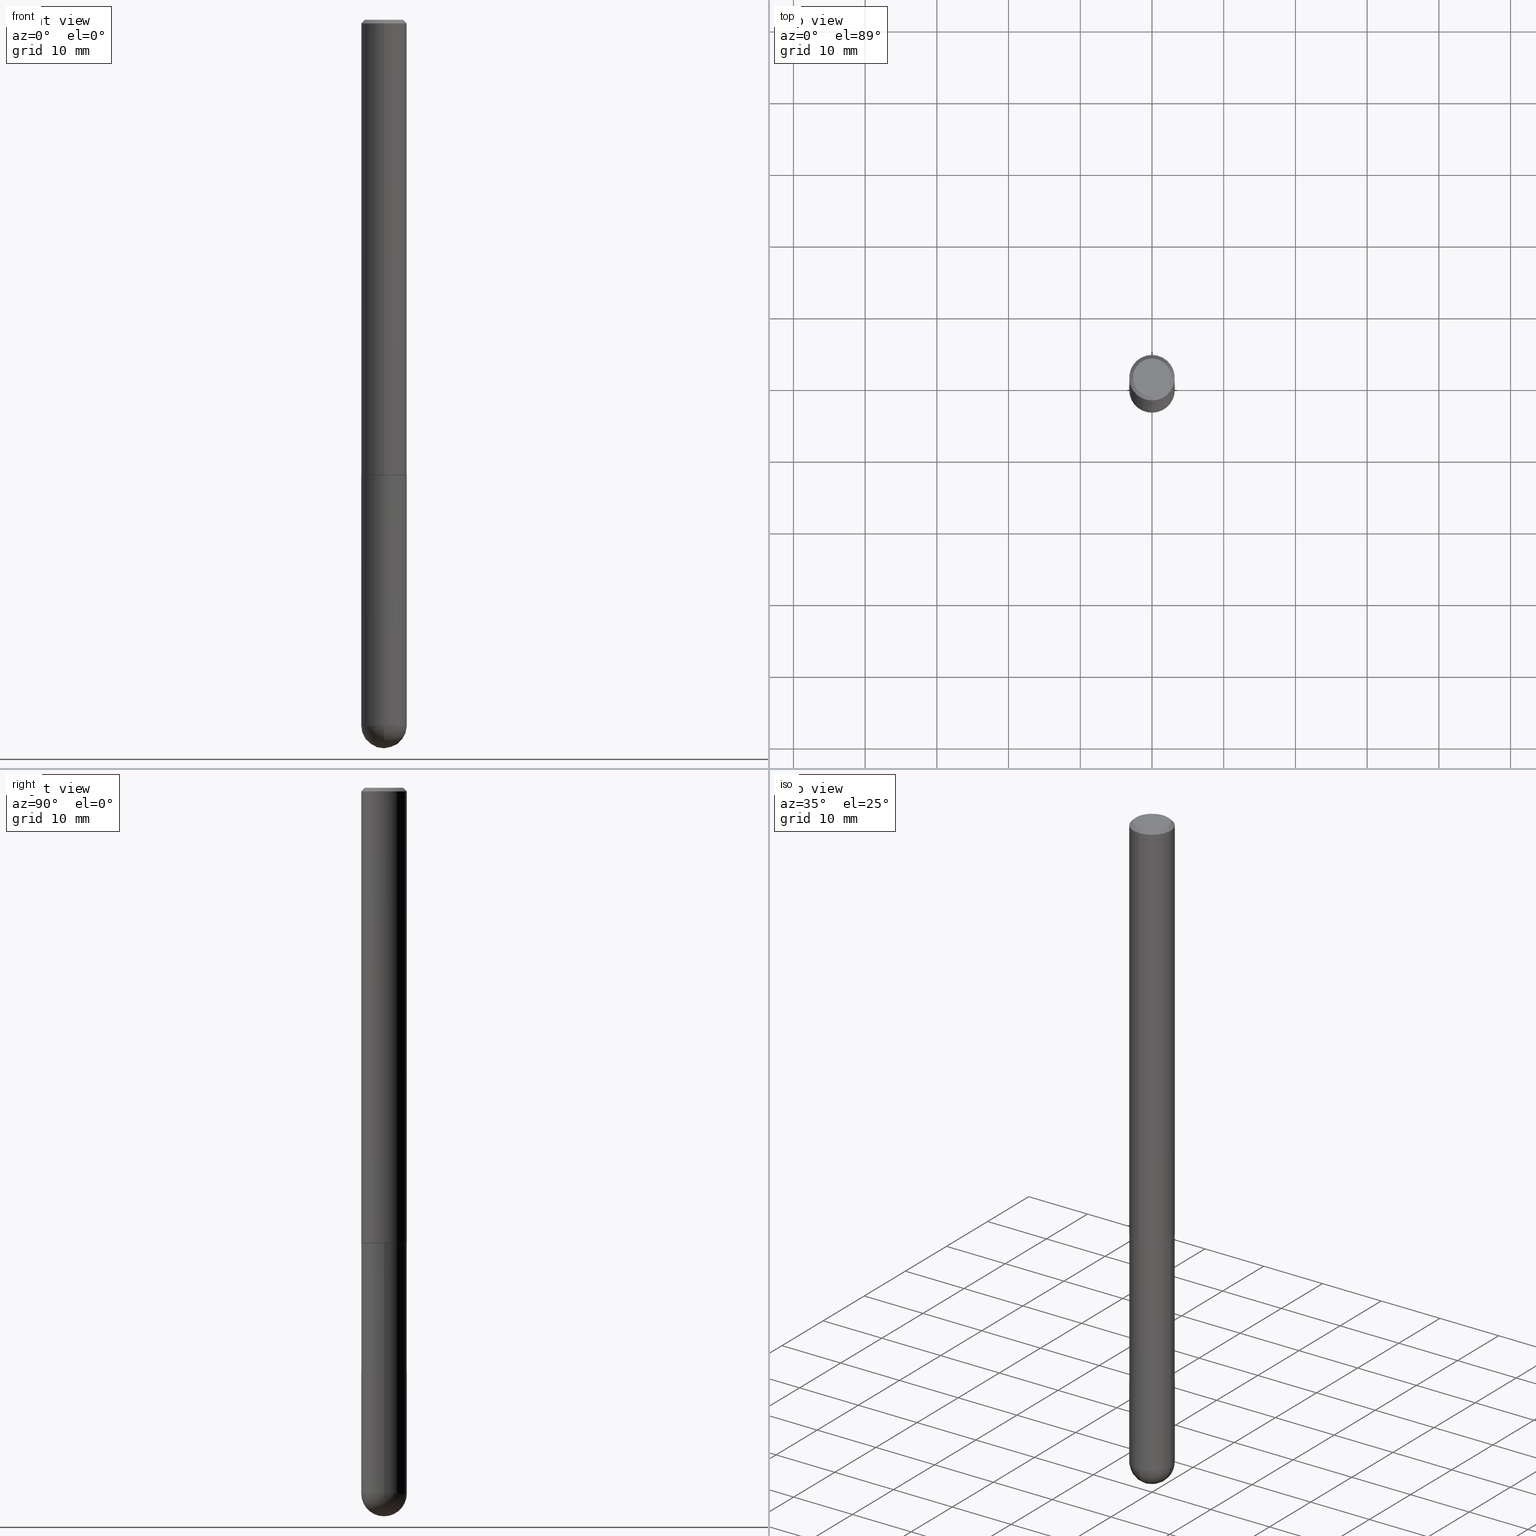
[diagram: canonical four-view strip — front | top / right | iso, engineering-drawing reading convention]
A machine part, canonical four-view strip (front | top / right | iso — engineering-drawing reading convention). The complete STEP part file that produces these views, byte-faithful:
ISO-10303-21;
HEADER;
FILE_DESCRIPTION (( 'STEP AP203' ),
    '1' );
FILE_NAME ('31930.STEP',
    '2024-02-21T17:17:25',
    ( '' ),
    ( '' ),
    'SwSTEP 2.0',
    'SolidWorks 2023',
    '' );
FILE_SCHEMA (( 'CONFIG_CONTROL_DESIGN' ));
ENDSEC;

DATA;
#1 = LINE ( 'NONE', #250, #222 ) ;
#2 = AXIS2_PLACEMENT_3D ( 'NONE', #173, #110, #388 ) ;
#3 = AXIS2_PLACEMENT_3D ( 'NONE', #58, #22, #53 ) ;
#4 = DIRECTION ( 'NONE',  ( -2.446028636923791301E-29, 3.490679629361805041E-15, 1.000000000000000000 ) ) ;
#5 = ADVANCED_FACE ( 'NONE', ( #379 ), #342, .T. ) ;
#6 = DIRECTION ( 'NONE',  ( -6.982962677686265922E-15, -1.000000000000000000, 3.490679629361805041E-15 ) ) ;
#7 = DIRECTION ( 'NONE',  ( -6.982962677686265922E-15, -1.000000000000000000, 3.490679629361805041E-15 ) ) ;
#8 = AXIS2_PLACEMENT_3D ( 'NONE', #320, #41, #112 ) ;
#9 = FACE_OUTER_BOUND ( 'NONE', #183, .T. ) ;
#10 = CARTESIAN_POINT ( 'NONE',  ( 8.728703347108443769E-16, 0.1249999999999912709, -2.500000000000000444 ) ) ;
#11 = DIRECTION ( 'NONE',  ( 6.982962677686265922E-15, 1.000000000000000000, -3.483106191921935554E-15 ) ) ;
#12 = APPLICATION_CONTEXT ( 'configuration controlled 3d designs of mechanical parts and assemblies' ) ;
#13 = AXIS2_PLACEMENT_3D ( 'NONE', #129, #134, #312 ) ;
#14 = AXIS2_PLACEMENT_3D ( 'NONE', #206, #261, #138 ) ;
#15 = CARTESIAN_POINT ( 'NONE',  ( 6.113672015462842613E-29, -8.728703347107864943E-15, -2.500000000000000000 ) ) ;
#16 = ADVANCED_FACE ( 'NONE', ( #347 ), #39, .T. ) ;
#17 = LINE ( 'NONE', #332, #131 ) ;
#18 = ORIENTED_EDGE ( 'NONE', *, *, #71, .T. ) ;
#19 = PRODUCT ( '31930', '31930', '', ( #121 ) ) ;
#20 = EDGE_LOOP ( 'NONE', ( #57, #298, #402, #272 ) ) ;
#21 = CIRCLE ( 'NONE', #126, 0.1250000000000000000 ) ;
#22 = DIRECTION ( 'NONE',  ( -2.445468806185136597E-29, 3.491481338843145583E-15, 1.000000000000000000 ) ) ;
#23 = ORIENTED_EDGE ( 'NONE', *, *, #200, .F. ) ;
#24 = DIRECTION ( 'NONE',  ( 1.000000000000000000, -6.982962677686262766E-15, 0.000000000000000000 ) ) ;
#25 = VERTEX_POINT ( 'NONE', #255 ) ;
#26 = ORIENTED_EDGE ( 'NONE', *, *, #145, .F. ) ;
#27 = CIRCLE ( 'NONE', #3, 0.1250000000000000000 ) ;
#28 = COORDINATED_UNIVERSAL_TIME_OFFSET ( 5, 0, .BEHIND. ) ;
#29 = DIRECTION ( 'NONE',  ( -2.445468806185136877E-29, 3.491481338843145188E-15, 1.000000000000000000 ) ) ;
#30 = EDGE_CURVE ( 'NONE', #330, #246, #164, .T. ) ;
#31 = ADVANCED_FACE ( 'NONE', ( #184 ), #99, .F. ) ;
#32 = COORDINATED_UNIVERSAL_TIME_OFFSET ( 5, 0, .BEHIND. ) ;
#33 = ORIENTED_EDGE ( 'NONE', *, *, #102, .F. ) ;
#34 = DATE_AND_TIME ( #64, #174 ) ;
#35 = FACE_OUTER_BOUND ( 'NONE', #333, .T. ) ;
#36 = CALENDAR_DATE ( 2024, 21, 2 ) ;
#37 = LINE ( 'NONE', #65, #42 ) ;
#38 = AXIS2_PLACEMENT_3D ( 'NONE', #199, #358, #353 ) ;
#39 = SPHERICAL_SURFACE ( 'NONE', #154, 0.1250000000000001943 ) ;
#40 = DIRECTION ( 'NONE',  ( -6.982962677686265922E-15, -1.000000000000000000, 4.406206441393973340E-15 ) ) ;
#41 = DIRECTION ( 'NONE',  ( 2.446028636923791301E-29, -3.490679629361805041E-15, -1.000000000000000000 ) ) ;
#42 = VECTOR ( 'NONE', #67, 39.37007874015748143 ) ;
#43 = CARTESIAN_POINT ( 'NONE',  ( -0.1250000000000000000, -1.024091834786240415E-14, -3.875000000000000000 ) ) ;
#44 = CARTESIAN_POINT ( 'NONE',  ( 0.1250000000000000000, -1.200196710227331272E-14, -3.875000000000000000 ) ) ;
#45 = CC_DESIGN_DATE_AND_TIME_ASSIGNMENT ( #159, #225, ( #345 ) ) ;
#46 = DIRECTION ( 'NONE',  ( -6.982962677686266711E-15, -1.000000000000000000, 3.490679629361805435E-15 ) ) ;
#47 = CIRCLE ( 'NONE', #208, 0.1250000000000000000 ) ;
#48 = CC_DESIGN_SECURITY_CLASSIFICATION ( #322, ( #407 ) ) ;
#49 = DIRECTION ( 'NONE',  ( 6.982962677686265922E-15, 1.000000000000000000, -3.490679629361805041E-15 ) ) ;
#50 = EDGE_LOOP ( 'NONE', ( #122, #211, #401, #180, #26 ) ) ;
#51 = DIRECTION ( 'NONE',  ( -2.445468806185136877E-29, 3.491481338843145188E-15, 1.000000000000000000 ) ) ;
#52 = ORIENTED_EDGE ( 'NONE', *, *, #152, .F. ) ;
#53 = DIRECTION ( 'NONE',  ( 1.000000000000000000, -6.982962677686262766E-15, 0.000000000000000000 ) ) ;
#54 = VERTEX_POINT ( 'NONE', #104 ) ;
#55 = AXIS2_PLACEMENT_3D ( 'NONE', #291, #171, #292 ) ;
#56 = APPROVAL_PERSON_ORGANIZATION ( #116, #193, #227 ) ;
#57 = ORIENTED_EDGE ( 'NONE', *, *, #71, .F. ) ;
#58 = CARTESIAN_POINT ( 'NONE',  ( 9.476191623967404313E-29, -1.352949018801718908E-14, -3.875000000000000000 ) ) ;
#59 = ORIENTED_EDGE ( 'NONE', *, *, #360, .T. ) ;
#60 = CC_DESIGN_PERSON_AND_ORGANIZATION_ASSIGNMENT ( #340, #248, ( #407 ) ) ;
#61 = CALENDAR_DATE ( 2024, 21, 2 ) ;
#62 = LINE ( 'NONE', #309, #85 ) ;
#63 = CONICAL_SURFACE ( 'NONE', #8, 0.1250000000000000000, 0.7853981633974471688 ) ;
#64 = CALENDAR_DATE ( 2024, 21, 2 ) ;
#65 = CARTESIAN_POINT ( 'NONE',  ( -8.658873720330357934E-16, -0.1240000000000087144, -2.499999999999999556 ) ) ;
#66 = PERSON ( 'UNSPECIFIED', 'UNSPECIFIED', 'UNSPECIFIED', ('UNSPECIFIED'), ('UNSPECIFIED'), ('UNSPECIFIED') ) ;
#67 = DIRECTION ( 'NONE',  ( -4.937700262165812586E-15, -0.7071067811867262076, 0.7071067811863689379 ) ) ;
#68 = PERSON_AND_ORGANIZATION ( #66, #100 ) ;
#69 = CARTESIAN_POINT ( 'NONE',  ( 9.476191623967404313E-29, -1.352949018801718908E-14, -3.875000000000000000 ) ) ;
#70 = CALENDAR_DATE ( 2024, 21, 2 ) ;
#71 = EDGE_CURVE ( 'NONE', #25, #209, #185, .T. ) ;
#72 = DIRECTION ( 'NONE',  ( -2.446028636923791301E-29, 3.490679629361805041E-15, 1.000000000000000000 ) ) ;
#73 = EDGE_CURVE ( 'NONE', #270, #252, #37, .T. ) ;
#74 = AXIS2_PLACEMENT_3D ( 'NONE', #107, #286, #160 ) ;
#75 = CYLINDRICAL_SURFACE ( 'NONE', #195, 0.1250000000000001388 ) ;
#76 = EDGE_CURVE ( 'NONE', #54, #364, #256, .T. ) ;
#77 = CARTESIAN_POINT ( 'NONE',  ( 8.728703347108770161E-16, 0.1249999999999863443, -3.875000000000000444 ) ) ;
#78 = DIRECTION ( 'NONE',  ( 2.438088387897960049E-29, -3.491481338843145188E-15, -1.000000000000000000 ) ) ;
#79 = AXIS2_PLACEMENT_3D ( 'NONE', #207, #363, #210 ) ;
#80 = CARTESIAN_POINT ( 'NONE',  ( -8.881784197000325412E-16, -0.1250000000000138500, -3.874999999999999556 ) ) ;
#81 = UNCERTAINTY_MEASURE_WITH_UNIT (LENGTH_MEASURE( 1.000000000000000082E-05 ), #143, 'distance_accuracy_value', 'NONE');
#82 = SPHERICAL_SURFACE ( 'NONE', #79, 0.1250000000000001943 ) ;
#83 = APPROVAL_STATUS ( 'not_yet_approved' ) ;
#84 = EDGE_CURVE ( 'NONE', #306, #153, #343, .T. ) ;
#85 = VECTOR ( 'NONE', #29, 39.37007874015748143 ) ;
#86 = FACE_OUTER_BOUND ( 'NONE', #128, .T. ) ;
#87 = EDGE_LOOP ( 'NONE', ( #144, #158, #274, #176, #399 ) ) ;
#88 = ADVANCED_FACE ( 'NONE', ( #35 ), #390, .T. ) ;
#89 = DIRECTION ( 'NONE',  ( -7.105427357601000281E-15, -1.000000000000000000, 0.000000000000000000 ) ) ;
#90 = CC_DESIGN_DATE_AND_TIME_ASSIGNMENT ( #376, #187, ( #322 ) ) ;
#91 = ORIENTED_EDGE ( 'NONE', *, *, #172, .T. ) ;
#92 = FACE_OUTER_BOUND ( 'NONE', #373, .T. ) ;
#93 = EDGE_LOOP ( 'NONE', ( #242, #130, #335, #218 ) ) ;
#94 = CIRCLE ( 'NONE', #303, 0.1250000000000000000 ) ;
#95 = DIRECTION ( 'NONE',  ( -1.000000000000000000, 7.105427357601001070E-15, -4.926315508542082329E-29 ) ) ;
#96 = ORIENTED_EDGE ( 'NONE', *, *, #152, .T. ) ;
#97 = EDGE_CURVE ( 'NONE', #148, #364, #186, .T. ) ;
#98 = CARTESIAN_POINT ( 'NONE',  ( 6.113672015462842613E-29, -8.728703347107864943E-15, -2.500000000000000000 ) ) ;
#99 = PLANE ( 'NONE',  #166 ) ;
#100 = ORGANIZATION ( 'UNSPECIFIED', 'UNSPECIFIED', '' ) ;
#101 = DIRECTION ( 'NONE',  ( 6.982962677686265922E-15, 1.000000000000000000, -4.370956789862814839E-15 ) ) ;
#102 = EDGE_CURVE ( 'NONE', #252, #364, #1, .T. ) ;
#103 = PERSON_AND_ORGANIZATION_ROLE ( 'creator' ) ;
#104 = CARTESIAN_POINT ( 'NONE',  ( -7.889572697437270014E-16, -0.1050000000000003431, 4.203023233981880134E-17 ) ) ;
#105 = CC_DESIGN_PERSON_AND_ORGANIZATION_ASSIGNMENT ( #68, #308, ( #322 ) ) ;
#106 = APPROVAL_STATUS ( 'not_yet_approved' ) ;
#107 = CARTESIAN_POINT ( 'NONE',  ( 4.892057273847589328E-31, -6.981359258723618414E-17, -0.02000000000000002470 ) ) ;
#108 = EDGE_CURVE ( 'NONE', #213, #54, #369, .T. ) ;
#109 = AXIS2_PLACEMENT_3D ( 'NONE', #344, #228, #133 ) ;
#110 = DIRECTION ( 'NONE',  ( -2.446028636923791301E-29, 3.490679629361805041E-15, 1.000000000000000000 ) ) ;
#111 = FACE_OUTER_BOUND ( 'NONE', #276, .T. ) ;
#112 = DIRECTION ( 'NONE',  ( 6.982962677686265922E-15, 1.000000000000000000, -3.483106191921935554E-15 ) ) ;
#113 = FACE_OUTER_BOUND ( 'NONE', #50, .T. ) ;
#114 = CIRCLE ( 'NONE', #247, 0.1239999999999999991 ) ;
#115 = DIMENSIONAL_EXPONENTS ( 1.000000000000000000, 0.000000000000000000, 0.000000000000000000, 0.000000000000000000, 0.000000000000000000, 0.000000000000000000, 0.000000000000000000 ) ;
#116 = PERSON_AND_ORGANIZATION ( #66, #100 ) ;
#117 = DIRECTION ( 'NONE',  ( -6.982962677686266711E-15, -1.000000000000000000, 3.490679629361805435E-15 ) ) ;
#118 = ORIENTED_EDGE ( 'NONE', *, *, #200, .T. ) ;
#119 = DIRECTION ( 'NONE',  ( 1.000000000000000000, 0.000000000000000000, 0.000000000000000000 ) ) ;
#120 = ORIENTED_EDGE ( 'NONE', *, *, #257, .T. ) ;
#121 = MECHANICAL_CONTEXT ( 'NONE', #12, 'mechanical' ) ;
#122 = ORIENTED_EDGE ( 'NONE', *, *, #367, .F. ) ;
#123 = PERSON_AND_ORGANIZATION ( #66, #100 ) ;
#124 = ORIENTED_EDGE ( 'NONE', *, *, #97, .T. ) ;
#125 = CC_DESIGN_PERSON_AND_ORGANIZATION_ASSIGNMENT ( #251, #280, ( #407 ) ) ;
#126 = AXIS2_PLACEMENT_3D ( 'NONE', #15, #327, #142 ) ;
#127 =( GEOMETRIC_REPRESENTATION_CONTEXT ( 3 ) GLOBAL_UNCERTAINTY_ASSIGNED_CONTEXT ( ( #81 ) ) GLOBAL_UNIT_ASSIGNED_CONTEXT ( ( #143, #336, #397 ) ) REPRESENTATION_CONTEXT ( 'NONE', 'WORKASPACE' ) );
#128 = EDGE_LOOP ( 'NONE', ( #240, #96 ) ) ;
#129 = CARTESIAN_POINT ( 'NONE',  ( 0.000000000000000000, 0.000000000000000000, 0.000000000000000000 ) ) ;
#130 = ORIENTED_EDGE ( 'NONE', *, *, #30, .T. ) ;
#131 = VECTOR ( 'NONE', #51, 39.37007874015748143 ) ;
#132 = CC_DESIGN_APPROVAL ( #193, ( #345 ) ) ;
#133 = DIRECTION ( 'NONE',  ( 6.982962677686265133E-15, 1.000000000000000000, 0.000000000000000000 ) ) ;
#134 = DIRECTION ( 'NONE',  ( -2.445468806185136597E-29, 3.491481338843145583E-15, 1.000000000000000000 ) ) ;
#135 = CARTESIAN_POINT ( 'NONE',  ( 6.115071592309478953E-29, -8.726699073404512800E-15, -2.500000000000000000 ) ) ;
#136 = APPROVAL ( #106, 'UNSPECIFIED' ) ;
#137 = AXIS2_PLACEMENT_3D ( 'NONE', #10, #78, #323 ) ;
#138 = DIRECTION ( 'NONE',  ( 1.000000000000000000, -6.982962677686262766E-15, 0.000000000000000000 ) ) ;
#139 = CARTESIAN_POINT ( 'NONE',  ( 8.030407079339220128E-16, 0.1050000000000003431, -6.910124898261626729E-16 ) ) ;
#140 = CARTESIAN_POINT ( 'NONE',  ( 8.728703347107837333E-16, 0.1249999999999999306, -0.02000000000000046185 ) ) ;
#141 = FACE_OUTER_BOUND ( 'NONE', #151, .T. ) ;
#142 = DIRECTION ( 'NONE',  ( 1.000000000000000000, -6.982962677686270655E-15, 0.000000000000000000 ) ) ;
#143 =( CONVERSION_BASED_UNIT ( 'INCH', #302 ) LENGTH_UNIT ( ) NAMED_UNIT ( #115 ) );
#144 = ORIENTED_EDGE ( 'NONE', *, *, #409, .T. ) ;
#145 = EDGE_CURVE ( 'NONE', #304, #307, #355, .T. ) ;
#146 = CARTESIAN_POINT ( 'NONE',  ( 9.145071846053518065E-29, -1.400367255615723938E-14, -3.875000000000000000 ) ) ;
#147 = EDGE_CURVE ( 'NONE', #279, #307, #62, .T. ) ;
#148 = VERTEX_POINT ( 'NONE', #277 ) ;
#149 = VECTOR ( 'NONE', #389, 39.37007874015748143 ) ;
#150 = ORIENTED_EDGE ( 'NONE', *, *, #76, .F. ) ;
#151 = EDGE_LOOP ( 'NONE', ( #382, #18, #368, #301 ) ) ;
#152 = EDGE_CURVE ( 'NONE', #54, #213, #234, .T. ) ;
#153 = VERTEX_POINT ( 'NONE', #80 ) ;
#154 = AXIS2_PLACEMENT_3D ( 'NONE', #318, #155, #101 ) ;
#155 = DIRECTION ( 'NONE',  ( -1.000000000000000000, 6.982962677686265922E-15, -4.883557194083112901E-29 ) ) ;
#156 = APPROVAL_DATE_TIME ( #378, #136 ) ;
#157 = ADVANCED_FACE ( 'NONE', ( #111 ), #75, .T. ) ;
#158 = ORIENTED_EDGE ( 'NONE', *, *, #367, .T. ) ;
#159 = DATE_AND_TIME ( #61, #284 ) ;
#160 = DIRECTION ( 'NONE',  ( -6.982962677686265922E-15, -1.000000000000000000, 3.483106191921935554E-15 ) ) ;
#161 = AXIS2_PLACEMENT_3D ( 'NONE', #69, #314, #221 ) ;
#162 = SHAPE_DEFINITION_REPRESENTATION ( #331, #237 ) ;
#163 = DIRECTION ( 'NONE',  ( -6.982962677686265922E-15, -1.000000000000000000, 4.406206441393973340E-15 ) ) ;
#164 = LINE ( 'NONE', #408, #194 ) ;
#165 = CYLINDRICAL_SURFACE ( 'NONE', #55, 0.1250000000000000000 ) ;
#166 = AXIS2_PLACEMENT_3D ( 'NONE', #224, #287, #6 ) ;
#167 = DIRECTION ( 'NONE',  ( -2.446028636923791301E-29, 3.490679629361805041E-15, 1.000000000000000000 ) ) ;
#168 = CARTESIAN_POINT ( 'NONE',  ( 0.1250000000000000000, -9.601573681818648281E-15, -2.500000000000000000 ) ) ;
#169 = EDGE_CURVE ( 'NONE', #279, #209, #321, .T. ) ;
#170 = PRODUCT_RELATED_PRODUCT_CATEGORY ( 'detail', '', ( #19 ) ) ;
#171 = DIRECTION ( 'NONE',  ( -2.445468806185136597E-29, 3.491481338843145583E-15, 1.000000000000000000 ) ) ;
#172 = EDGE_CURVE ( 'NONE', #330, #270, #216, .T. ) ;
#173 = CARTESIAN_POINT ( 'NONE',  ( 6.115071592309478953E-29, -8.726699073404512800E-15, -2.500000000000000000 ) ) ;
#174 = LOCAL_TIME ( 12, 17, 25.00000000000000000, #313 ) ;
#175 = CC_DESIGN_PERSON_AND_ORGANIZATION_ASSIGNMENT ( #311, #103, ( #345 ) ) ;
#176 = ORIENTED_EDGE ( 'NONE', *, *, #147, .F. ) ;
#177 = CARTESIAN_POINT ( 'NONE',  ( -8.575622497214408537E-16, -0.1250000000000000555, -0.01999999999999959102 ) ) ;
#178 = ORIENTED_EDGE ( 'NONE', *, *, #73, .T. ) ;
#179 = DIRECTION ( 'NONE',  ( 2.446028636923791021E-29, -3.490679629361805041E-15, -1.000000000000000000 ) ) ;
#180 = ORIENTED_EDGE ( 'NONE', *, *, #147, .T. ) ;
#181 = VECTOR ( 'NONE', #394, 39.37007874015748143 ) ;
#182 = ORIENTED_EDGE ( 'NONE', *, *, #275, .T. ) ;
#183 = EDGE_LOOP ( 'NONE', ( #52, #395, #59, #23 ) ) ;
#184 = FACE_OUTER_BOUND ( 'NONE', #406, .T. ) ;
#185 = CIRCLE ( 'NONE', #109, 0.1250000000000001943 ) ;
#186 = CIRCLE ( 'NONE', #74, 0.1250000000000000000 ) ;
#187 = DATE_TIME_ROLE ( 'classification_date' ) ;
#188 = CARTESIAN_POINT ( 'NONE',  ( -8.575622497214408537E-16, -0.1250000000000000555, -0.01999999999999959102 ) ) ;
#189 = SECURITY_CLASSIFICATION_LEVEL ( 'unclassified' ) ;
#190 = DIRECTION ( 'NONE',  ( -4.851104656540957964E-15, -0.7071067811865491270, -0.7071067811865459074 ) ) ;
#191 = APPROVAL_ROLE ( '' ) ;
#192 = DIRECTION ( 'NONE',  ( -2.446028636923791301E-29, 3.490679629361805041E-15, 1.000000000000000000 ) ) ;
#193 = APPROVAL ( #83, 'UNSPECIFIED' ) ;
#194 = VECTOR ( 'NONE', #226, 39.37007874015748143 ) ;
#195 = AXIS2_PLACEMENT_3D ( 'NONE', #205, #230, #46 ) ;
#196 = COORDINATED_UNIVERSAL_TIME_OFFSET ( 5, 0, .BEHIND. ) ;
#197 = LOCAL_TIME ( 12, 17, 25.00000000000000000, #196 ) ;
#198 = ORIENTED_EDGE ( 'NONE', *, *, #383, .T. ) ;
#199 = CARTESIAN_POINT ( 'NONE',  ( 6.112625563672555012E-29, -8.723208393775151741E-15, -2.499000000000000110 ) ) ;
#200 = EDGE_CURVE ( 'NONE', #213, #148, #262, .T. ) ;
#201 = DIRECTION ( 'NONE',  ( -6.982962677686265922E-15, -1.000000000000000000, 4.406206441393973340E-15 ) ) ;
#202 = AXIS2_PLACEMENT_3D ( 'NONE', #385, #356, #201 ) ;
#203 = CARTESIAN_POINT ( 'NONE',  ( 6.115071592309478953E-29, -8.726699073404512800E-15, -2.500000000000000000 ) ) ;
#204 = EDGE_CURVE ( 'NONE', #270, #330, #114, .T. ) ;
#205 = CARTESIAN_POINT ( 'NONE',  ( 0.000000000000000000, 0.000000000000000000, 0.000000000000000000 ) ) ;
#206 = CARTESIAN_POINT ( 'NONE',  ( 9.476191623967404313E-29, -1.352949018801718908E-14, -3.875000000000000000 ) ) ;
#207 = CARTESIAN_POINT ( 'NONE',  ( 9.145071846053518065E-29, -1.400367255615723938E-14, -3.875000000000000000 ) ) ;
#208 = AXIS2_PLACEMENT_3D ( 'NONE', #338, #268, #24 ) ;
#209 = VERTEX_POINT ( 'NONE', #77 ) ;
#210 = DIRECTION ( 'NONE',  ( 6.982962677686265922E-15, 1.000000000000000000, -4.370956789862814839E-15 ) ) ;
#211 = ORIENTED_EDGE ( 'NONE', *, *, #84, .T. ) ;
#212 = DIRECTION ( 'NONE',  ( -2.446028636923791301E-29, 3.490679629361805041E-15, 1.000000000000000000 ) ) ;
#213 = VERTEX_POINT ( 'NONE', #139 ) ;
#214 = CARTESIAN_POINT ( 'NONE',  ( 4.892057273847589328E-31, -6.981359258723618414E-17, -0.02000000000000002470 ) ) ;
#215 = ORIENTED_EDGE ( 'NONE', *, *, #97, .F. ) ;
#216 = CIRCLE ( 'NONE', #2, 0.1239999999999999991 ) ;
#217 = CYLINDRICAL_SURFACE ( 'NONE', #386, 0.1250000000000001388 ) ;
#218 = ORIENTED_EDGE ( 'NONE', *, *, #73, .F. ) ;
#219 = DIRECTION ( 'NONE',  ( -2.445468806185136597E-29, 3.491481338843145583E-15, 1.000000000000000000 ) ) ;
#220 = CC_DESIGN_PERSON_AND_ORGANIZATION_ASSIGNMENT ( #123, #393, ( #19 ) ) ;
#221 = DIRECTION ( 'NONE',  ( 1.000000000000000000, -6.982962677686262766E-15, 0.000000000000000000 ) ) ;
#222 = VECTOR ( 'NONE', #4, 39.37007874015748143 ) ;
#223 = CC_DESIGN_APPROVAL ( #239, ( #322 ) ) ;
#224 = CARTESIAN_POINT ( 'NONE',  ( 6.115071592309478953E-29, -8.726699073404512800E-15, -2.500000000000000000 ) ) ;
#225 = DATE_TIME_ROLE ( 'creation_date' ) ;
#226 = DIRECTION ( 'NONE',  ( 5.024295867789349022E-15, 0.7071067811867310926, 0.7071067811863640529 ) ) ;
#227 = APPROVAL_ROLE ( '' ) ;
#228 = DIRECTION ( 'NONE',  ( 1.000000000000000000, -6.982962677686265922E-15, 4.883557194083112340E-29 ) ) ;
#229 = AXIS2_PLACEMENT_3D ( 'NONE', #288, #293, #11 ) ;
#230 = DIRECTION ( 'NONE',  ( -2.446028636923791301E-29, 3.490679629361805041E-15, 1.000000000000000000 ) ) ;
#231 = MANIFOLD_SOLID_BREP ( 'Body-Move/Copy2[2]', #317 ) ;
#232 = DIRECTION ( 'NONE',  ( -2.446028636923791301E-29, 3.490679629361805041E-15, 1.000000000000000000 ) ) ;
#233 = FACE_OUTER_BOUND ( 'NONE', #267, .T. ) ;
#234 = CIRCLE ( 'NONE', #310, 0.1050000000000003431 ) ;
#235 = DIRECTION ( 'NONE',  ( -2.446028636923791301E-29, 3.490679629361805041E-15, 1.000000000000000000 ) ) ;
#236 = MANIFOLD_SOLID_BREP ( 'Body-Move/Copy2[1]', #253 ) ;
#237 = ADVANCED_BREP_SHAPE_REPRESENTATION ( '31930', ( #236, #231, #351 ), #127 ) ;
#238 = CARTESIAN_POINT ( 'NONE',  ( 8.846257060213868511E-16, 0.1239999999999912700, -2.500000000000000444 ) ) ;
#239 = APPROVAL ( #412, 'UNSPECIFIED' ) ;
#240 = ORIENTED_EDGE ( 'NONE', *, *, #108, .T. ) ;
#241 = APPROVAL_PERSON_ORGANIZATION ( #278, #239, #191 ) ;
#242 = ORIENTED_EDGE ( 'NONE', *, *, #204, .T. ) ;
#243 = LINE ( 'NONE', #297, #181 ) ;
#244 = ORIENTED_EDGE ( 'NONE', *, *, #383, .F. ) ;
#245 = CARTESIAN_POINT ( 'NONE',  ( 0.000000000000000000, 0.000000000000000000, 0.000000000000000000 ) ) ;
#246 = VERTEX_POINT ( 'NONE', #260 ) ;
#247 = AXIS2_PLACEMENT_3D ( 'NONE', #203, #235, #40 ) ;
#248 = PERSON_AND_ORGANIZATION_ROLE ( 'design_supplier' ) ;
#249 = ORIENTED_EDGE ( 'NONE', *, *, #257, .F. ) ;
#250 = CARTESIAN_POINT ( 'NONE',  ( -8.728703347107843249E-16, -0.1250000000000001388, 4.363349536702261725E-16 ) ) ;
#251 = PERSON_AND_ORGANIZATION ( #66, #100 ) ;
#252 = VERTEX_POINT ( 'NONE', #387 ) ;
#253 = CLOSED_SHELL ( 'NONE', ( #5, #16, #324, #299, #285 ) ) ;
#254 = APPROVAL_DATE_TIME ( #34, #193 ) ;
#255 = CARTESIAN_POINT ( 'NONE',  ( 9.456100236134031739E-29, -1.443245368101796326E-14, -4.000000000000000888 ) ) ;
#256 = LINE ( 'NONE', #188, #350 ) ;
#257 = EDGE_CURVE ( 'NONE', #246, #252, #377, .T. ) ;
#258 = DIRECTION ( 'NONE',  ( -6.982962677686265922E-15, -1.000000000000000000, 3.490679629361805041E-15 ) ) ;
#259 = AXIS2_PLACEMENT_3D ( 'NONE', #264, #167, #319 ) ;
#260 = CARTESIAN_POINT ( 'NONE',  ( 8.881784197001575756E-16, 0.1249999999999915762, -2.499000000000000998 ) ) ;
#261 = DIRECTION ( 'NONE',  ( -2.445468806185136597E-29, 3.491481338843145583E-15, 1.000000000000000000 ) ) ;
#262 = LINE ( 'NONE', #140, #149 ) ;
#263 = AXIS2_PLACEMENT_3D ( 'NONE', #329, #179, #49 ) ;
#264 = CARTESIAN_POINT ( 'NONE',  ( 6.112625563672555012E-29, -8.723208393775151741E-15, -2.499000000000000110 ) ) ;
#265 = ADVANCED_FACE ( 'NONE', ( #352 ), #361, .T. ) ;
#266 = DIRECTION ( 'NONE',  ( -2.446028636923791301E-29, 3.490679629361805041E-15, 1.000000000000000000 ) ) ;
#267 = EDGE_LOOP ( 'NONE', ( #182, #411 ) ) ;
#268 = DIRECTION ( 'NONE',  ( -2.445468806185136597E-29, 3.491481338843145583E-15, 1.000000000000000000 ) ) ;
#269 = AXIS2_PLACEMENT_3D ( 'NONE', #98, #219, #341 ) ;
#270 = VERTEX_POINT ( 'NONE', #295 ) ;
#271 = ADVANCED_FACE ( 'NONE', ( #325 ), #63, .T. ) ;
#272 = ORIENTED_EDGE ( 'NONE', *, *, #409, .F. ) ;
#273 = CARTESIAN_POINT ( 'NONE',  ( 0.000000000000000000, 0.000000000000000000, 0.000000000000000000 ) ) ;
#274 = ORIENTED_EDGE ( 'NONE', *, *, #275, .F. ) ;
#275 = EDGE_CURVE ( 'NONE', #307, #304, #21, .T. ) ;
#276 = EDGE_LOOP ( 'NONE', ( #366, #198, #337, #33 ) ) ;
#277 = CARTESIAN_POINT ( 'NONE',  ( 8.728703347107837333E-16, 0.1249999999999999306, -0.02000000000000046185 ) ) ;
#278 = PERSON_AND_ORGANIZATION ( #66, #100 ) ;
#279 = VERTEX_POINT ( 'NONE', #44 ) ;
#280 = PERSON_AND_ORGANIZATION_ROLE ( 'creator' ) ;
#281 = ORIENTED_EDGE ( 'NONE', *, *, #108, .F. ) ;
#282 = CIRCLE ( 'NONE', #259, 0.1250000000000003053 ) ;
#283 = EDGE_CURVE ( 'NONE', #252, #246, #282, .T. ) ;
#284 = LOCAL_TIME ( 12, 17, 25.00000000000000000, #346 ) ;
#285 = ADVANCED_FACE ( 'NONE', ( #113 ), #165, .T. ) ;
#286 = DIRECTION ( 'NONE',  ( -2.446028636923791301E-29, 3.490679629361805041E-15, 1.000000000000000000 ) ) ;
#287 = DIRECTION ( 'NONE',  ( -2.446028636923791021E-29, 3.490679629361805041E-15, 1.000000000000000000 ) ) ;
#288 = CARTESIAN_POINT ( 'NONE',  ( 4.892057273847589328E-31, -6.981359258723618414E-17, -0.02000000000000002470 ) ) ;
#289 = ADVANCED_FACE ( 'NONE', ( #9 ), #328, .T. ) ;
#290 = CC_DESIGN_APPROVAL ( #136, ( #407 ) ) ;
#291 = CARTESIAN_POINT ( 'NONE',  ( 0.000000000000000000, 0.000000000000000000, 0.000000000000000000 ) ) ;
#292 = DIRECTION ( 'NONE',  ( 1.000000000000000000, -6.982962677686266711E-15, 4.876176775795935793E-29 ) ) ;
#293 = DIRECTION ( 'NONE',  ( 2.446028636923791301E-29, -3.490679629361805041E-15, -1.000000000000000000 ) ) ;
#294 = AXIS2_PLACEMENT_3D ( 'NONE', #349, #72, #258 ) ;
#295 = CARTESIAN_POINT ( 'NONE',  ( -8.658873720330357934E-16, -0.1240000000000087144, -2.499999999999999556 ) ) ;
#296 = LOCAL_TIME ( 12, 17, 25.00000000000000000, #32 ) ;
#297 = CARTESIAN_POINT ( 'NONE',  ( 8.881784197001262184E-16, 0.1250000000000001388, -4.363349536702261725E-16 ) ) ;
#298 = ORIENTED_EDGE ( 'NONE', *, *, #375, .T. ) ;
#299 = ADVANCED_FACE ( 'NONE', ( #233 ), #354, .F. ) ;
#300 =( LENGTH_UNIT ( ) NAMED_UNIT ( * ) SI_UNIT ( $, .METRE. ) );
#301 = ORIENTED_EDGE ( 'NONE', *, *, #403, .F. ) ;
#302 = LENGTH_MEASURE_WITH_UNIT ( LENGTH_MEASURE( 0.02539999999999999897 ), #300 );
#303 = AXIS2_PLACEMENT_3D ( 'NONE', #214, #266, #334 ) ;
#304 = VERTEX_POINT ( 'NONE', #392 ) ;
#305 = DIRECTION ( 'NONE',  ( 0.000000000000000000, 0.000000000000000000, 1.000000000000000000 ) ) ;
#306 = VERTEX_POINT ( 'NONE', #43 ) ;
#307 = VERTEX_POINT ( 'NONE', #168 ) ;
#308 = PERSON_AND_ORGANIZATION_ROLE ( 'classification_officer' ) ;
#309 = CARTESIAN_POINT ( 'NONE',  ( 0.1250000000000000000, -8.728703347107833388E-16, 6.095220969744919741E-30 ) ) ;
#310 = AXIS2_PLACEMENT_3D ( 'NONE', #374, #232, #7 ) ;
#311 = PERSON_AND_ORGANIZATION ( #66, #100 ) ;
#312 = DIRECTION ( 'NONE',  ( 1.000000000000000000, -6.982962677686266711E-15, 4.876176775795935793E-29 ) ) ;
#313 = COORDINATED_UNIVERSAL_TIME_OFFSET ( 5, 0, .BEHIND. ) ;
#314 = DIRECTION ( 'NONE',  ( -2.445468806185136597E-29, 3.491481338843145583E-15, 1.000000000000000000 ) ) ;
#315 = DATE_AND_TIME ( #410, #197 ) ;
#316 = ORIENTED_EDGE ( 'NONE', *, *, #204, .F. ) ;
#317 = CLOSED_SHELL ( 'NONE', ( #265, #157, #289, #271, #384, #88, #31, #357 ) ) ;
#318 = CARTESIAN_POINT ( 'NONE',  ( 9.145071846053518065E-29, -1.400367255615723938E-14, -3.875000000000000000 ) ) ;
#319 = DIRECTION ( 'NONE',  ( -6.982962677686265922E-15, -1.000000000000000000, 4.370956789862810105E-15 ) ) ;
#320 = CARTESIAN_POINT ( 'NONE',  ( 4.892057273847589328E-31, -6.981359258723618414E-17, -0.02000000000000002470 ) ) ;
#321 = CIRCLE ( 'NONE', #14, 0.1250000000000000000 ) ;
#322 = SECURITY_CLASSIFICATION ( '', '', #189 ) ;
#323 = DIRECTION ( 'NONE',  ( -1.000000000000000000, 6.982962677686265922E-15, -4.876176775795935793E-29 ) ) ;
#324 = ADVANCED_FACE ( 'NONE', ( #141 ), #82, .T. ) ;
#325 = FACE_OUTER_BOUND ( 'NONE', #370, .T. ) ;
#326 = DESIGN_CONTEXT ( 'detailed design', #380, 'design' ) ;
#327 = DIRECTION ( 'NONE',  ( -2.445468806185136597E-29, 3.491481338843145583E-15, 1.000000000000000000 ) ) ;
#328 = CONICAL_SURFACE ( 'NONE', #229, 0.1250000000000000000, 0.7853981633974471688 ) ;
#329 = CARTESIAN_POINT ( 'NONE',  ( 7.332110811570602923E-16, 0.1050000000000003431, -5.287669254545767312E-16 ) ) ;
#330 = VERTEX_POINT ( 'NONE', #238 ) ;
#331 = PRODUCT_DEFINITION_SHAPE ( 'NONE', 'NONE',  #345 ) ;
#332 = CARTESIAN_POINT ( 'NONE',  ( -0.1250000000000000000, 8.881784197001252323E-16, -6.148668862818632227E-30 ) ) ;
#333 = EDGE_LOOP ( 'NONE', ( #398, #91, #178, #249 ) ) ;
#334 = DIRECTION ( 'NONE',  ( -6.982962677686265922E-15, -1.000000000000000000, 3.483106191921935554E-15 ) ) ;
#335 = ORIENTED_EDGE ( 'NONE', *, *, #283, .F. ) ;
#336 =( NAMED_UNIT ( * ) PLANE_ANGLE_UNIT ( ) SI_UNIT ( $, .RADIAN. ) );
#337 = ORIENTED_EDGE ( 'NONE', *, *, #360, .F. ) ;
#338 = CARTESIAN_POINT ( 'NONE',  ( 9.476191623967404313E-29, -1.352949018801718908E-14, -3.875000000000000000 ) ) ;
#339 = ORIENTED_EDGE ( 'NONE', *, *, #102, .T. ) ;
#340 = PERSON_AND_ORGANIZATION ( #66, #100 ) ;
#341 = DIRECTION ( 'NONE',  ( 1.000000000000000000, -6.982962677686270655E-15, 0.000000000000000000 ) ) ;
#342 = CYLINDRICAL_SURFACE ( 'NONE', #13, 0.1250000000000000000 ) ;
#343 = CIRCLE ( 'NONE', #161, 0.1250000000000000000 ) ;
#344 = CARTESIAN_POINT ( 'NONE',  ( 9.145071846053518065E-29, -1.400367255615723938E-14, -3.875000000000000000 ) ) ;
#345 = PRODUCT_DEFINITION ( 'UNKNOWN', '', #407, #326 ) ;
#346 = COORDINATED_UNIVERSAL_TIME_OFFSET ( 5, 0, .BEHIND. ) ;
#347 = FACE_OUTER_BOUND ( 'NONE', #20, .T. ) ;
#348 = APPROVAL_ROLE ( '' ) ;
#349 = CARTESIAN_POINT ( 'NONE',  ( 7.937145933335233420E-45, -1.132694573012409239E-30, -3.244911287431719327E-16 ) ) ;
#350 = VECTOR ( 'NONE', #190, 39.37007874015748143 ) ;
#351 = AXIS2_PLACEMENT_3D ( 'NONE', #273, #305, #119 ) ;
#352 = FACE_OUTER_BOUND ( 'NONE', #93, .T. ) ;
#353 = DIRECTION ( 'NONE',  ( -6.982962677686265922E-15, -1.000000000000000000, 4.370956789862810105E-15 ) ) ;
#354 = PLANE ( 'NONE',  #137 ) ;
#355 = CIRCLE ( 'NONE', #269, 0.1250000000000000000 ) ;
#356 = DIRECTION ( 'NONE',  ( -2.446028636923791301E-29, 3.490679629361805041E-15, 1.000000000000000000 ) ) ;
#357 = ADVANCED_FACE ( 'NONE', ( #86 ), #365, .F. ) ;
#358 = DIRECTION ( 'NONE',  ( -2.446028636923791301E-29, 3.490679629361805041E-15, 1.000000000000000000 ) ) ;
#359 = APPLICATION_PROTOCOL_DEFINITION ( 'international standard', 'config_control_design', 1994, #380 ) ;
#360 = EDGE_CURVE ( 'NONE', #364, #148, #94, .T. ) ;
#361 = CONICAL_SURFACE ( 'NONE', #202, 0.1239999999999999991, 0.7853981633977044075 ) ;
#362 = APPROVAL_PERSON_ORGANIZATION ( #381, #136, #348 ) ;
#363 = DIRECTION ( 'NONE',  ( -1.000000000000000000, 6.982962677686265922E-15, -4.883557194083112901E-29 ) ) ;
#364 = VERTEX_POINT ( 'NONE', #177 ) ;
#365 = PLANE ( 'NONE',  #263 ) ;
#366 = ORIENTED_EDGE ( 'NONE', *, *, #283, .T. ) ;
#367 = EDGE_CURVE ( 'NONE', #306, #304, #17, .T. ) ;
#368 = ORIENTED_EDGE ( 'NONE', *, *, #169, .F. ) ;
#369 = CIRCLE ( 'NONE', #294, 0.1050000000000003431 ) ;
#370 = EDGE_LOOP ( 'NONE', ( #150, #281, #118, #124 ) ) ;
#371 = ORIENTED_EDGE ( 'NONE', *, *, #172, .F. ) ;
#372 = APPROVAL_DATE_TIME ( #315, #239 ) ;
#373 = EDGE_LOOP ( 'NONE', ( #244, #120, #339, #215 ) ) ;
#374 = CARTESIAN_POINT ( 'NONE',  ( 7.937145933335233420E-45, -1.132694573012409239E-30, -3.244911287431719327E-16 ) ) ;
#375 = EDGE_CURVE ( 'NONE', #25, #153, #405, .T. ) ;
#376 = DATE_AND_TIME ( #36, #391 ) ;
#377 = CIRCLE ( 'NONE', #38, 0.1250000000000003053 ) ;
#378 = DATE_AND_TIME ( #70, #296 ) ;
#379 = FACE_OUTER_BOUND ( 'NONE', #87, .T. ) ;
#380 = APPLICATION_CONTEXT ( 'configuration controlled 3d designs of mechanical parts and assemblies' ) ;
#381 = PERSON_AND_ORGANIZATION ( #66, #100 ) ;
#382 = ORIENTED_EDGE ( 'NONE', *, *, #375, .F. ) ;
#383 = EDGE_CURVE ( 'NONE', #246, #148, #243, .T. ) ;
#384 = ADVANCED_FACE ( 'NONE', ( #92 ), #217, .T. ) ;
#385 = CARTESIAN_POINT ( 'NONE',  ( 6.115071592309478953E-29, -8.726699073404512800E-15, -2.500000000000000000 ) ) ;
#386 = AXIS2_PLACEMENT_3D ( 'NONE', #245, #212, #117 ) ;
#387 = CARTESIAN_POINT ( 'NONE',  ( -8.728703347107242729E-16, -0.1250000000000090206, -2.498999999999999666 ) ) ;
#388 = DIRECTION ( 'NONE',  ( -6.982962677686265922E-15, -1.000000000000000000, 4.406206441393973340E-15 ) ) ;
#389 = DIRECTION ( 'NONE',  ( 4.937700262164541731E-15, 0.7071067811865442421, -0.7071067811865507924 ) ) ;
#390 = CONICAL_SURFACE ( 'NONE', #396, 0.1239999999999999991, 0.7853981633977044075 ) ;
#391 = LOCAL_TIME ( 12, 17, 25.00000000000000000, #28 ) ;
#392 = CARTESIAN_POINT ( 'NONE',  ( -0.1250000000000000000, -1.024091834786240099E-14, -2.500000000000000000 ) ) ;
#393 = PERSON_AND_ORGANIZATION_ROLE ( 'design_owner' ) ;
#394 = DIRECTION ( 'NONE',  ( -2.446028636923791301E-29, 3.490679629361805041E-15, 1.000000000000000000 ) ) ;
#395 = ORIENTED_EDGE ( 'NONE', *, *, #76, .T. ) ;
#396 = AXIS2_PLACEMENT_3D ( 'NONE', #135, #192, #163 ) ;
#397 =( NAMED_UNIT ( * ) SI_UNIT ( $, .STERADIAN. ) SOLID_ANGLE_UNIT ( ) );
#398 = ORIENTED_EDGE ( 'NONE', *, *, #30, .F. ) ;
#399 = ORIENTED_EDGE ( 'NONE', *, *, #169, .T. ) ;
#400 = APPLICATION_PROTOCOL_DEFINITION ( 'international standard', 'config_control_design', 1994, #12 ) ;
#401 = ORIENTED_EDGE ( 'NONE', *, *, #403, .T. ) ;
#402 = ORIENTED_EDGE ( 'NONE', *, *, #84, .F. ) ;
#403 = EDGE_CURVE ( 'NONE', #153, #279, #47, .T. ) ;
#404 = AXIS2_PLACEMENT_3D ( 'NONE', #146, #95, #89 ) ;
#405 = CIRCLE ( 'NONE', #404, 0.1250000000000001943 ) ;
#406 = EDGE_LOOP ( 'NONE', ( #316, #371 ) ) ;
#407 = PRODUCT_DEFINITION_FORMATION_WITH_SPECIFIED_SOURCE ( 'ANY', '', #19, .NOT_KNOWN. ) ;
#408 = CARTESIAN_POINT ( 'NONE',  ( 8.810729923425852623E-16, 0.1239999999999912700, -2.500000000000000444 ) ) ;
#409 = EDGE_CURVE ( 'NONE', #209, #306, #27, .T. ) ;
#410 = CALENDAR_DATE ( 2024, 21, 2 ) ;
#411 = ORIENTED_EDGE ( 'NONE', *, *, #145, .T. ) ;
#412 = APPROVAL_STATUS ( 'not_yet_approved' ) ;
ENDSEC;
END-ISO-10303-21;
